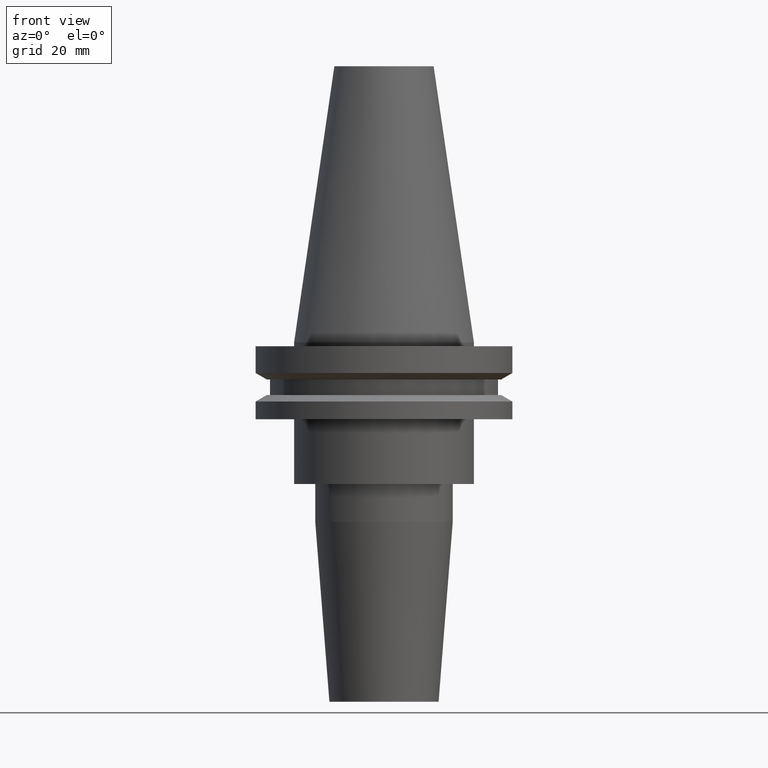
[diagram: clean part render]
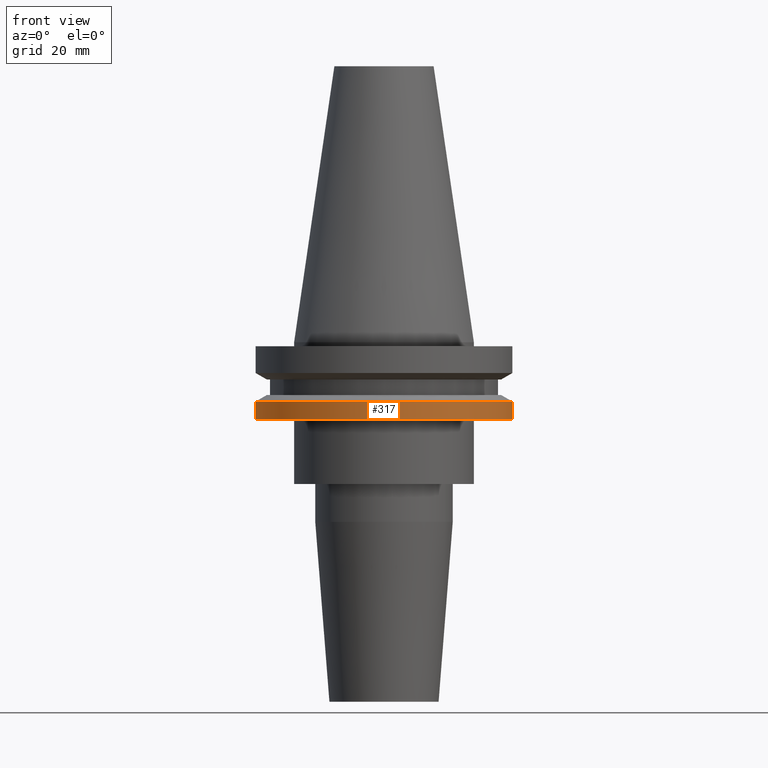
[diagram: same view with one face highlighted and labeled with its STEP entity id]
A machine part, front view. The second image highlights one B-rep face of the part: STEP entity #317.
In plain terms, the highlighted cylindrical surface (partial cylindrical patch) has radius 31.75 mm, axis along (-0, -0, 1).
Its self-contained STEP definition (entity closure, byte-faithful):
#8 = AXIS2_PLACEMENT_3D ( 'NONE', #260, #395, #518 ) ;
#41 = VERTEX_POINT ( 'NONE', #814 ) ;
#43 = CARTESIAN_POINT ( 'NONE',  ( 31.75000000000000000, 0.000000000000000000, -14.65472339340266572 ) ) ;
#89 = VERTEX_POINT ( 'NONE', #644 ) ;
#142 = VECTOR ( 'NONE', #200, 1000.000000000000000 ) ;
#196 = DIRECTION ( 'NONE',  ( -0.000000000000000000, -0.000000000000000000, 1.000000000000000000 ) ) ;
#199 = EDGE_LOOP ( 'NONE', ( #541, #695, #831, #765 ) ) ;
#200 = DIRECTION ( 'NONE',  ( -0.000000000000000000, -0.000000000000000000, 1.000000000000000000 ) ) ;
#205 = DIRECTION ( 'NONE',  ( -0.000000000000000000, -0.000000000000000000, 1.000000000000000000 ) ) ;
#208 = LINE ( 'NONE', #792, #142 ) ;
#210 = FACE_OUTER_BOUND ( 'NONE', #199, .T. ) ;
#226 = EDGE_CURVE ( 'NONE', #89, #258, #684, .T. ) ;
#258 = VERTEX_POINT ( 'NONE', #405 ) ;
#260 = CARTESIAN_POINT ( 'NONE',  ( 0.000000000000000000, 0.000000000000000000, -19.04999999999999716 ) ) ;
#317 = ADVANCED_FACE ( 'NONE', ( #210 ), #738, .T. ) ;
#333 = CARTESIAN_POINT ( 'NONE',  ( 31.75000000000000000, 0.000000000000000000, 68.25000000000000000 ) ) ;
#356 = AXIS2_PLACEMENT_3D ( 'NONE', #743, #205, #664 ) ;
#380 = EDGE_CURVE ( 'NONE', #258, #516, #662, .T. ) ;
#395 = DIRECTION ( 'NONE',  ( -0.000000000000000000, -0.000000000000000000, 1.000000000000000000 ) ) ;
#405 = CARTESIAN_POINT ( 'NONE',  ( 31.74999999999999289, 0.000000000000000000, -19.04999999999999716 ) ) ;
#441 = CARTESIAN_POINT ( 'NONE',  ( 0.000000000000000000, 0.000000000000000000, -14.65472339340266572 ) ) ;
#461 = CIRCLE ( 'NONE', #609, 31.75000000000000000 ) ;
#516 = VERTEX_POINT ( 'NONE', #43 ) ;
#518 = DIRECTION ( 'NONE',  ( 1.000000000000000000, 0.000000000000000000, 0.000000000000000000 ) ) ;
#541 = ORIENTED_EDGE ( 'NONE', *, *, #849, .F. ) ;
#589 = EDGE_CURVE ( 'NONE', #41, #516, #461, .T. ) ;
#592 = DIRECTION ( 'NONE',  ( -0.000000000000000000, -0.000000000000000000, 1.000000000000000000 ) ) ;
#609 = AXIS2_PLACEMENT_3D ( 'NONE', #441, #196, #846 ) ;
#644 = CARTESIAN_POINT ( 'NONE',  ( -31.74999999999999289, 3.888253587292845687E-15, -19.04999999999999716 ) ) ;
#662 = LINE ( 'NONE', #333, #753 ) ;
#664 = DIRECTION ( 'NONE',  ( 1.000000000000000000, 0.000000000000000000, 0.000000000000000000 ) ) ;
#684 = CIRCLE ( 'NONE', #8, 31.74999999999999289 ) ;
#695 = ORIENTED_EDGE ( 'NONE', *, *, #226, .T. ) ;
#738 = CYLINDRICAL_SURFACE ( 'NONE', #356, 31.75000000000000000 ) ;
#743 = CARTESIAN_POINT ( 'NONE',  ( 0.000000000000000000, 0.000000000000000000, 68.25000000000000000 ) ) ;
#753 = VECTOR ( 'NONE', #592, 1000.000000000000000 ) ;
#765 = ORIENTED_EDGE ( 'NONE', *, *, #589, .F. ) ;
#792 = CARTESIAN_POINT ( 'NONE',  ( -31.75000000000000000, 3.888253587292846476E-15, 68.25000000000000000 ) ) ;
#814 = CARTESIAN_POINT ( 'NONE',  ( -31.75000000000000000, 3.888253587292846476E-15, -14.65472339340266572 ) ) ;
#831 = ORIENTED_EDGE ( 'NONE', *, *, #380, .T. ) ;
#846 = DIRECTION ( 'NONE',  ( 1.000000000000000000, 0.000000000000000000, 0.000000000000000000 ) ) ;
#849 = EDGE_CURVE ( 'NONE', #89, #41, #208, .T. ) ;